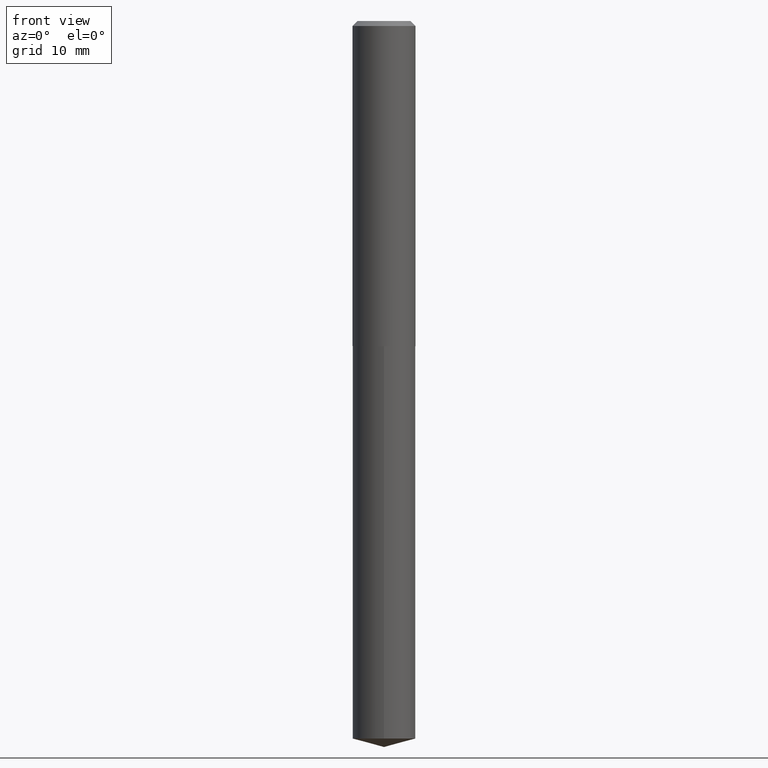
[diagram: clean part render]
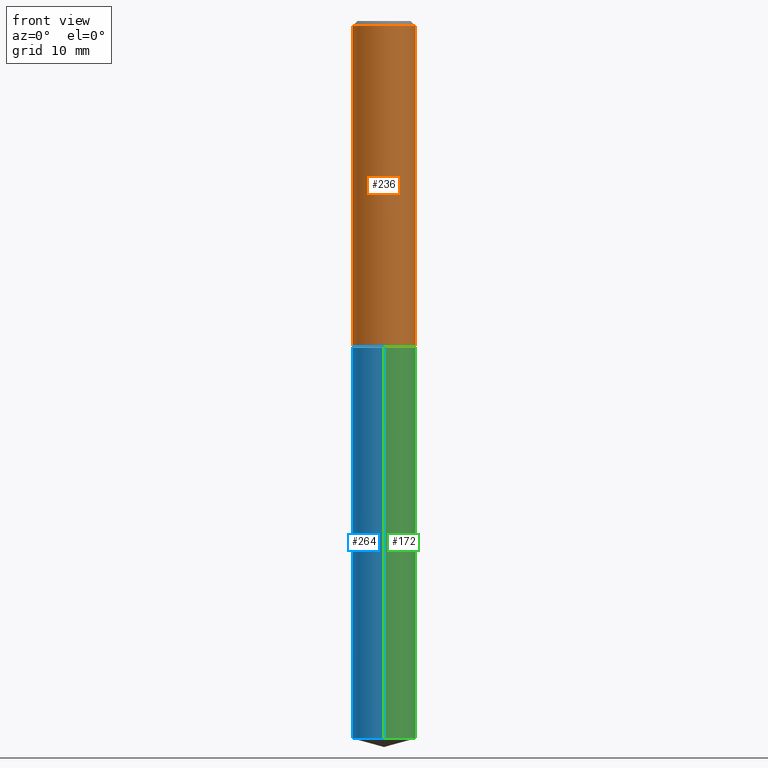
[diagram: same view with three faces highlighted in distinct colors, each labeled with its STEP entity id]
A machine part, front view with three faces highlighted in distinct colors.
Their STEP definitions:

[orange] entity #236 — the highlighted cylindrical surface (edge-blend (fillet) strip) has radius 4.9606 mm, axis along (-0, 0, 1).
#1 = ORIENTED_EDGE ( 'NONE', *, *, #51, .F. ) ;
#17 = CARTESIAN_POINT ( 'NONE',  ( 7.642090019328603538E-31, -1.091087918388490390E-16, -0.03125000000000021511 ) ) ;
#37 = EDGE_CURVE ( 'NONE', #303, #297, #305, .T. ) ;
#51 = EDGE_CURVE ( 'NONE', #252, #366, #337, .T. ) ;
#60 = EDGE_CURVE ( 'NONE', #252, #303, #79, .T. ) ;
#79 = CIRCLE ( 'NONE', #242, 0.1953000000000002789 ) ;
#93 = CARTESIAN_POINT ( 'NONE',  ( 0.000000000000000000, 0.000000000000000000, 0.000000000000000000 ) ) ;
#106 = ORIENTED_EDGE ( 'NONE', *, *, #385, .F. ) ;
#116 = FACE_OUTER_BOUND ( 'NONE', #196, .T. ) ;
#133 = CARTESIAN_POINT ( 'NONE',  ( 0.1953000000000002789, -8.399456656854951226E-15, -2.015099999999999891 ) ) ;
#139 = CARTESIAN_POINT ( 'NONE',  ( -0.1953000000000000014, -2.184706455931358572E-15, -0.03125000000000021511 ) ) ;
#145 = DIRECTION ( 'NONE',  ( -2.445468806185136597E-29, 3.491481338843145583E-15, 1.000000000000000000 ) ) ;
#152 = DIRECTION ( 'NONE',  ( -2.445468806185136597E-29, 3.491481338843145583E-15, 1.000000000000000000 ) ) ;
#184 = ORIENTED_EDGE ( 'NONE', *, *, #37, .T. ) ;
#191 = VECTOR ( 'NONE', #371, 39.37007874015748143 ) ;
#196 = EDGE_LOOP ( 'NONE', ( #1, #281, #184, #106 ) ) ;
#202 = CARTESIAN_POINT ( 'NONE',  ( -0.1953000000000001402, 1.387689962939476659E-15, -9.606680231267837403E-30 ) ) ;
#210 = AXIS2_PLACEMENT_3D ( 'NONE', #17, #145, #338 ) ;
#216 = VECTOR ( 'NONE', #381, 39.37007874015748143 ) ;
#236 = ADVANCED_FACE ( 'NONE', ( #116 ), #266, .T. ) ;
#240 = DIRECTION ( 'NONE',  ( 1.000000000000000000, -6.982962677686265922E-15, 4.876176775795935793E-29 ) ) ;
#242 = AXIS2_PLACEMENT_3D ( 'NONE', #286, #152, #312 ) ;
#243 = CIRCLE ( 'NONE', #210, 0.1953000000000000014 ) ;
#252 = VERTEX_POINT ( 'NONE', #380 ) ;
#266 = CYLINDRICAL_SURFACE ( 'NONE', #379, 0.1953000000000001402 ) ;
#281 = ORIENTED_EDGE ( 'NONE', *, *, #60, .T. ) ;
#282 = CARTESIAN_POINT ( 'NONE',  ( 0.1953000000000001402, -1.363772610952128681E-15, 9.523173243129469184E-30 ) ) ;
#286 = CARTESIAN_POINT ( 'NONE',  ( 4.927864191343668736E-29, -7.035684045902822940E-15, -2.015099999999999891 ) ) ;
#297 = VERTEX_POINT ( 'NONE', #323 ) ;
#303 = VERTEX_POINT ( 'NONE', #133 ) ;
#305 = LINE ( 'NONE', #282, #191 ) ;
#312 = DIRECTION ( 'NONE',  ( 1.000000000000000000, -6.982962677686263555E-15, 0.000000000000000000 ) ) ;
#323 = CARTESIAN_POINT ( 'NONE',  ( 0.1953000000000000014, -1.472881402790976795E-15, -0.03125000000000021511 ) ) ;
#337 = LINE ( 'NONE', #202, #216 ) ;
#338 = DIRECTION ( 'NONE',  ( 1.000000000000000000, -6.982962677686265922E-15, 0.000000000000000000 ) ) ;
#366 = VERTEX_POINT ( 'NONE', #139 ) ;
#371 = DIRECTION ( 'NONE',  ( -2.445468806185136877E-29, 3.491481338843145188E-15, 1.000000000000000000 ) ) ;
#379 = AXIS2_PLACEMENT_3D ( 'NONE', #93, #389, #240 ) ;
#380 = CARTESIAN_POINT ( 'NONE',  ( -0.1953000000000002789, -5.647994082963345492E-15, -2.015099999999999891 ) ) ;
#381 = DIRECTION ( 'NONE',  ( -2.445468806185136877E-29, 3.491481338843145188E-15, 1.000000000000000000 ) ) ;
#385 = EDGE_CURVE ( 'NONE', #366, #297, #243, .T. ) ;
#389 = DIRECTION ( 'NONE',  ( -2.445468806185136597E-29, 3.491481338843145583E-15, 1.000000000000000000 ) ) ;

[blue] entity #264 — the highlighted cylindrical surface (edge-blend (fillet) strip) has radius 4.9606 mm, axis along (-0, 0, 1).
#21 = CARTESIAN_POINT ( 'NONE',  ( 1.387689962939524582E-15, 0.1952999999999929515, -2.015600000000000946 ) ) ;
#29 = AXIS2_PLACEMENT_3D ( 'NONE', #207, #346, #87 ) ;
#59 = DIRECTION ( 'NONE',  ( -2.445401014960176786E-29, 3.491578419735724613E-15, 1.000000000000000000 ) ) ;
#66 = EDGE_CURVE ( 'NONE', #138, #182, #176, .T. ) ;
#80 = DIRECTION ( 'NONE',  ( -6.982962677686265922E-15, -1.000000000000000000, 2.797591391361252770E-15 ) ) ;
#83 = CARTESIAN_POINT ( 'NONE',  ( 1.087647220505556857E-28, -1.552919124739208263E-14, -4.447669522718203261 ) ) ;
#87 = DIRECTION ( 'NONE',  ( -6.982962677686265922E-15, -1.000000000000000000, 2.797591391361252770E-15 ) ) ;
#94 = EDGE_CURVE ( 'NONE', #245, #168, #310, .T. ) ;
#118 = DIRECTION ( 'NONE',  ( -2.445401014960176786E-29, 3.491578419735724218E-15, 1.000000000000000000 ) ) ;
#119 = DIRECTION ( 'NONE',  ( -2.445401014960176786E-29, 3.491578419735724613E-15, 1.000000000000000000 ) ) ;
#124 = CARTESIAN_POINT ( 'NONE',  ( -1.363772610952019029E-15, -0.1953000000000155445, -4.447669522718202373 ) ) ;
#136 = CIRCLE ( 'NONE', #29, 0.1953000000000000014 ) ;
#138 = VERTEX_POINT ( 'NONE', #383 ) ;
#141 = ORIENTED_EDGE ( 'NONE', *, *, #66, .F. ) ;
#151 = CYLINDRICAL_SURFACE ( 'NONE', #167, 0.1953000000000000014 ) ;
#156 = VECTOR ( 'NONE', #373, 39.37007874015748143 ) ;
#162 = EDGE_CURVE ( 'NONE', #138, #245, #204, .T. ) ;
#167 = AXIS2_PLACEMENT_3D ( 'NONE', #382, #119, #234 ) ;
#168 = VERTEX_POINT ( 'NONE', #235 ) ;
#169 = ORIENTED_EDGE ( 'NONE', *, *, #94, .T. ) ;
#174 = CARTESIAN_POINT ( 'NONE',  ( -1.363772610952078588E-15, -0.1953000000000070235, -2.015599999999999614 ) ) ;
#176 = LINE ( 'NONE', #21, #348 ) ;
#182 = VERTEX_POINT ( 'NONE', #206 ) ;
#194 = ORIENTED_EDGE ( 'NONE', *, *, #267, .F. ) ;
#204 = CIRCLE ( 'NONE', #300, 0.1953000000000000014 ) ;
#206 = CARTESIAN_POINT ( 'NONE',  ( 1.387689962939584536E-15, 0.1952999999999929237, -2.015600000000000946 ) ) ;
#207 = CARTESIAN_POINT ( 'NONE',  ( 4.929086925746762098E-29, -7.037429786572245232E-15, -2.015600000000000058 ) ) ;
#234 = DIRECTION ( 'NONE',  ( -6.982962677686265922E-15, -1.000000000000000000, 2.797591391361252770E-15 ) ) ;
#235 = CARTESIAN_POINT ( 'NONE',  ( -1.363772610952078588E-15, -0.1953000000000070235, -2.015599999999999614 ) ) ;
#245 = VERTEX_POINT ( 'NONE', #124 ) ;
#264 = ADVANCED_FACE ( 'NONE', ( #288 ), #151, .T. ) ;
#267 = EDGE_CURVE ( 'NONE', #182, #168, #136, .T. ) ;
#268 = EDGE_LOOP ( 'NONE', ( #141, #359, #169, #194 ) ) ;
#288 = FACE_OUTER_BOUND ( 'NONE', #268, .T. ) ;
#300 = AXIS2_PLACEMENT_3D ( 'NONE', #83, #59, #80 ) ;
#310 = LINE ( 'NONE', #174, #156 ) ;
#346 = DIRECTION ( 'NONE',  ( -2.445401014960176786E-29, 3.491578419735724613E-15, 1.000000000000000000 ) ) ;
#348 = VECTOR ( 'NONE', #118, 39.37007874015748143 ) ;
#359 = ORIENTED_EDGE ( 'NONE', *, *, #162, .T. ) ;
#373 = DIRECTION ( 'NONE',  ( -2.445401014960176786E-29, 3.491578419735724218E-15, 1.000000000000000000 ) ) ;
#382 = CARTESIAN_POINT ( 'NONE',  ( 4.929086925746762098E-29, -7.037429786572245232E-15, -2.015600000000000058 ) ) ;
#383 = CARTESIAN_POINT ( 'NONE',  ( 1.387689962939584141E-15, 0.1952999999999844583, -4.447669522718203261 ) ) ;

[green] entity #172 — the highlighted cylindrical surface (edge-blend (fillet) strip) has radius 4.9606 mm, axis along (-0, 0, 1).
#21 = CARTESIAN_POINT ( 'NONE',  ( 1.387689962939524582E-15, 0.1952999999999929515, -2.015600000000000946 ) ) ;
#36 = ORIENTED_EDGE ( 'NONE', *, *, #66, .T. ) ;
#39 = EDGE_LOOP ( 'NONE', ( #226, #36, #146, #75 ) ) ;
#52 = DIRECTION ( 'NONE',  ( -2.445401014960176786E-29, 3.491578419735724613E-15, 1.000000000000000000 ) ) ;
#53 = DIRECTION ( 'NONE',  ( -6.982962677686265922E-15, -1.000000000000000000, 2.797591391361252770E-15 ) ) ;
#66 = EDGE_CURVE ( 'NONE', #138, #182, #176, .T. ) ;
#72 = DIRECTION ( 'NONE',  ( -6.982962677686265922E-15, -1.000000000000000000, 2.797591391361252770E-15 ) ) ;
#75 = ORIENTED_EDGE ( 'NONE', *, *, #94, .F. ) ;
#94 = EDGE_CURVE ( 'NONE', #245, #168, #310, .T. ) ;
#111 = CARTESIAN_POINT ( 'NONE',  ( 4.929086925746762098E-29, -7.037429786572245232E-15, -2.015600000000000058 ) ) ;
#118 = DIRECTION ( 'NONE',  ( -2.445401014960176786E-29, 3.491578419735724218E-15, 1.000000000000000000 ) ) ;
#124 = CARTESIAN_POINT ( 'NONE',  ( -1.363772610952019029E-15, -0.1953000000000155445, -4.447669522718202373 ) ) ;
#138 = VERTEX_POINT ( 'NONE', #383 ) ;
#142 = AXIS2_PLACEMENT_3D ( 'NONE', #171, #232, #351 ) ;
#146 = ORIENTED_EDGE ( 'NONE', *, *, #320, .F. ) ;
#156 = VECTOR ( 'NONE', #373, 39.37007874015748143 ) ;
#157 = CIRCLE ( 'NONE', #180, 0.1953000000000000014 ) ;
#168 = VERTEX_POINT ( 'NONE', #235 ) ;
#171 = CARTESIAN_POINT ( 'NONE',  ( 4.929086925746762098E-29, -7.037429786572245232E-15, -2.015600000000000058 ) ) ;
#172 = ADVANCED_FACE ( 'NONE', ( #377 ), #239, .T. ) ;
#174 = CARTESIAN_POINT ( 'NONE',  ( -1.363772610952078588E-15, -0.1953000000000070235, -2.015599999999999614 ) ) ;
#176 = LINE ( 'NONE', #21, #348 ) ;
#180 = AXIS2_PLACEMENT_3D ( 'NONE', #309, #291, #53 ) ;
#182 = VERTEX_POINT ( 'NONE', #206 ) ;
#206 = CARTESIAN_POINT ( 'NONE',  ( 1.387689962939584536E-15, 0.1952999999999929237, -2.015600000000000946 ) ) ;
#226 = ORIENTED_EDGE ( 'NONE', *, *, #228, .T. ) ;
#228 = EDGE_CURVE ( 'NONE', #245, #138, #157, .T. ) ;
#232 = DIRECTION ( 'NONE',  ( -2.445401014960176786E-29, 3.491578419735724613E-15, 1.000000000000000000 ) ) ;
#235 = CARTESIAN_POINT ( 'NONE',  ( -1.363772610952078588E-15, -0.1953000000000070235, -2.015599999999999614 ) ) ;
#239 = CYLINDRICAL_SURFACE ( 'NONE', #142, 0.1953000000000000014 ) ;
#245 = VERTEX_POINT ( 'NONE', #124 ) ;
#278 = CIRCLE ( 'NONE', #307, 0.1953000000000000014 ) ;
#291 = DIRECTION ( 'NONE',  ( -2.445401014960176786E-29, 3.491578419735724613E-15, 1.000000000000000000 ) ) ;
#307 = AXIS2_PLACEMENT_3D ( 'NONE', #111, #52, #72 ) ;
#309 = CARTESIAN_POINT ( 'NONE',  ( 1.087647220505556857E-28, -1.552919124739208263E-14, -4.447669522718203261 ) ) ;
#310 = LINE ( 'NONE', #174, #156 ) ;
#320 = EDGE_CURVE ( 'NONE', #168, #182, #278, .T. ) ;
#348 = VECTOR ( 'NONE', #118, 39.37007874015748143 ) ;
#351 = DIRECTION ( 'NONE',  ( -6.982962677686265922E-15, -1.000000000000000000, 2.797591391361252770E-15 ) ) ;
#373 = DIRECTION ( 'NONE',  ( -2.445401014960176786E-29, 3.491578419735724218E-15, 1.000000000000000000 ) ) ;
#377 = FACE_OUTER_BOUND ( 'NONE', #39, .T. ) ;
#383 = CARTESIAN_POINT ( 'NONE',  ( 1.387689962939584141E-15, 0.1952999999999844583, -4.447669522718203261 ) ) ;